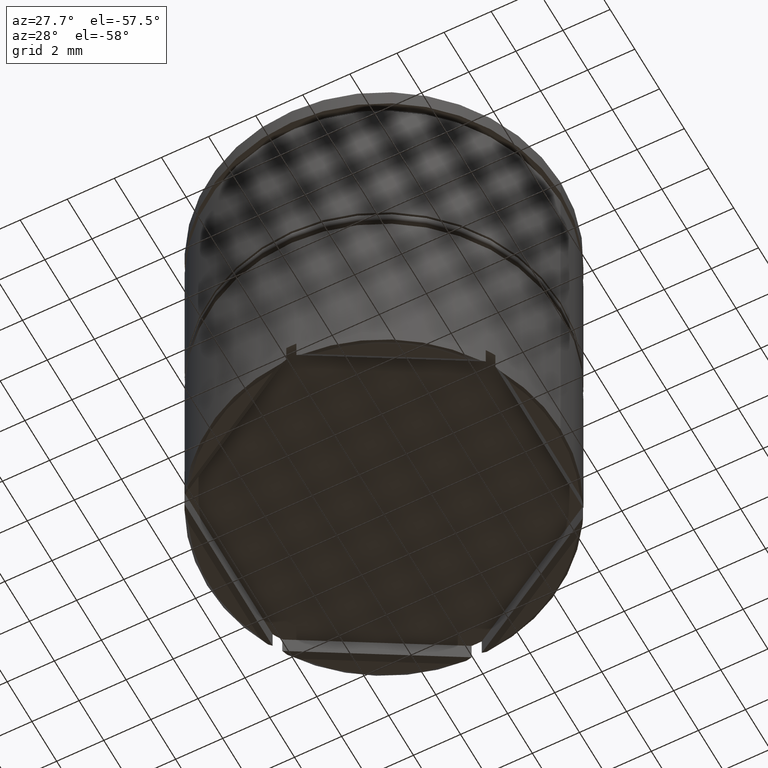
[diagram: clean part render]
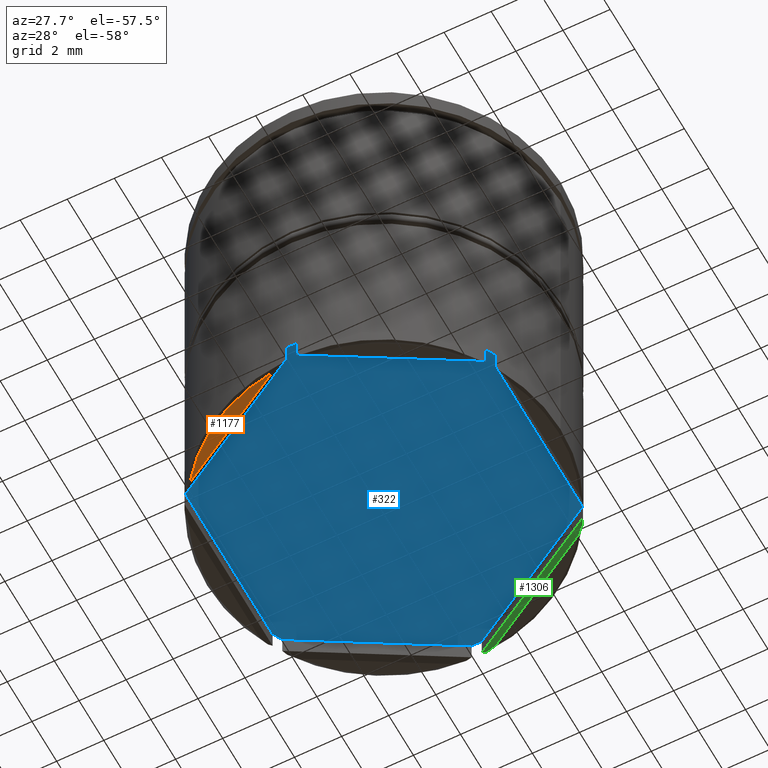
[diagram: same view with three faces highlighted in distinct colors, each labeled with its STEP entity id]
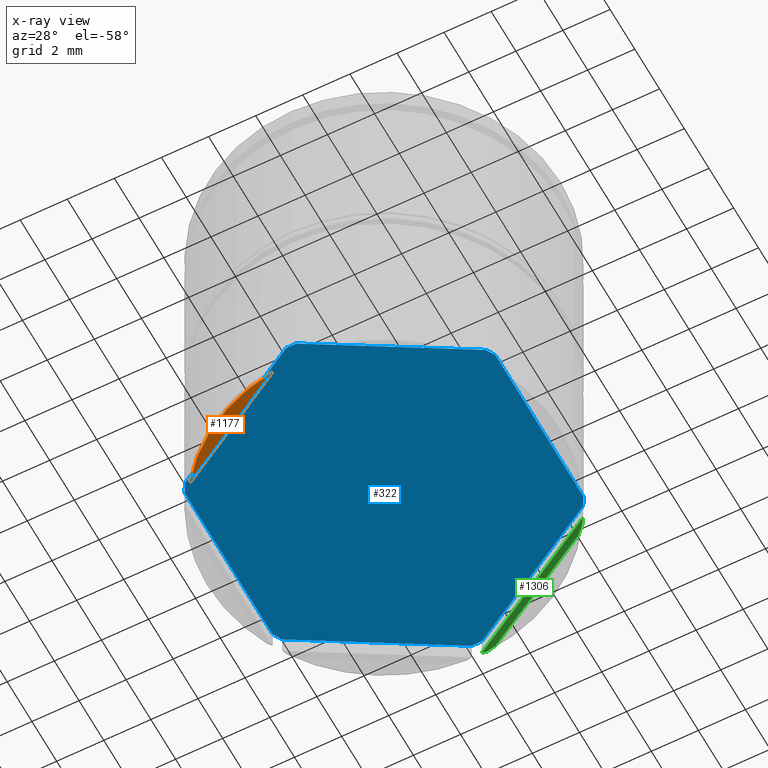
[diagram: x-ray of the same camera — body ghosted, the three highlighted faces saturated]
A machine part, auxiliary view with three faces highlighted in distinct colors.
The next image is the same camera in x-ray (body ghosted, the three faces saturated) — at least one of them is partly hidden behind the body in this view.
Their STEP definitions:

[orange] entity #1177 — the highlighted planar face has unit normal (0, 0, -1).
#65 = FACE_OUTER_BOUND ( 'NONE', #300, .T. ) ;
#84 = CARTESIAN_POINT ( 'NONE',  ( -0.8721550680471004124, -7.348424697666830596, -17.50000000000000000 ) ) ;
#123 = EDGE_CURVE ( 'NONE', #630, #1537, #536, .T. ) ;
#237 = AXIS2_PLACEMENT_3D ( 'NONE', #431, #1182, #418 ) ;
#300 = EDGE_LOOP ( 'NONE', ( #1471, #1034 ) ) ;
#340 = LINE ( 'NONE', #495, #1067 ) ;
#418 = DIRECTION ( 'NONE',  ( -1.000000000000000000, 0.000000000000000000, 0.000000000000000000 ) ) ;
#431 = CARTESIAN_POINT ( 'NONE',  ( 0.000000000000000000, 0.000000000000000000, -17.50000000000000000 ) ) ;
#495 = CARTESIAN_POINT ( 'NONE',  ( -0.5017246507621132556, -7.562292798802343619, -17.50000000000000000 ) ) ;
#536 = CIRCLE ( 'NONE', #237, 7.400000000000006573 ) ;
#630 = VERTEX_POINT ( 'NONE', #84 ) ;
#824 = PLANE ( 'NONE',  #953 ) ;
#853 = DIRECTION ( 'NONE',  ( 0.8660254037844385966, -0.5000000000000002220, 0.000000000000000000 ) ) ;
#953 = AXIS2_PLACEMENT_3D ( 'NONE', #1421, #1202, #1305 ) ;
#1034 = ORIENTED_EDGE ( 'NONE', *, *, #1328, .T. ) ;
#1067 = VECTOR ( 'NONE', #853, 999.9999999999998863 ) ;
#1118 = CARTESIAN_POINT ( 'NONE',  ( -5.927844931952908958, -4.429520793801551726, -17.50000000000000000 ) ) ;
#1177 = ADVANCED_FACE ( 'NONE', ( #65 ), #824, .T. ) ;
#1182 = DIRECTION ( 'NONE',  ( 0.000000000000000000, 0.000000000000000000, -1.000000000000000000 ) ) ;
#1202 = DIRECTION ( 'NONE',  ( 0.000000000000000000, 0.000000000000000000, -1.000000000000000000 ) ) ;
#1305 = DIRECTION ( 'NONE',  ( -1.000000000000000000, 0.000000000000000000, -0.000000000000000000 ) ) ;
#1328 = EDGE_CURVE ( 'NONE', #1537, #630, #340, .T. ) ;
#1421 = CARTESIAN_POINT ( 'NONE',  ( 0.000000000000000000, 7.500000000000000000, -17.50000000000000000 ) ) ;
#1471 = ORIENTED_EDGE ( 'NONE', *, *, #123, .T. ) ;
#1537 = VERTEX_POINT ( 'NONE', #1118 ) ;

[blue] entity #322 — the highlighted planar face has unit normal (0, 0, -1).
#5 = VECTOR ( 'NONE', #800, 1000.000000000000000 ) ;
#10 = VERTEX_POINT ( 'NONE', #894 ) ;
#29 = DIRECTION ( 'NONE',  ( -1.000000000000000000, 0.000000000000000000, 0.000000000000000000 ) ) ;
#50 = CIRCLE ( 'NONE', #979, 7.500000000000000000 ) ;
#62 = DIRECTION ( 'NONE',  ( 0.8660254037844387076, 0.4999999999999997780, 0.000000000000000000 ) ) ;
#75 = ORIENTED_EDGE ( 'NONE', *, *, #273, .F. ) ;
#86 = CARTESIAN_POINT ( 'NONE',  ( -0.2149554298195408275, 7.496918978032982572, -16.50000000000000000 ) ) ;
#100 = DIRECTION ( 'NONE',  ( 0.000000000000000000, 1.000000000000000000, 0.000000000000000000 ) ) ;
#103 = EDGE_CURVE ( 'NONE', #1447, #984, #1283, .T. ) ;
#114 = VERTEX_POINT ( 'NONE', #167 ) ;
#160 = CARTESIAN_POINT ( 'NONE',  ( 0.2149554298195403834, 7.496918978032981684, -16.50000000000000000 ) ) ;
#167 = CARTESIAN_POINT ( 'NONE',  ( -6.600000000000003197, -3.562302626111366610, -16.50000000000000000 ) ) ;
#170 = CARTESIAN_POINT ( 'NONE',  ( 0.000000000000000000, 0.000000000000000000, -16.50000000000000000 ) ) ;
#186 = LINE ( 'NONE', #542, #5 ) ;
#209 = CIRCLE ( 'NONE', #856, 7.500000000000000000 ) ;
#211 = AXIS2_PLACEMENT_3D ( 'NONE', #1380, #248, #29 ) ;
#231 = CARTESIAN_POINT ( 'NONE',  ( 0.2149554298195399393, -7.496918978032981684, -16.50000000000000000 ) ) ;
#236 = ORIENTED_EDGE ( 'NONE', *, *, #1288, .T. ) ;
#248 = DIRECTION ( 'NONE',  ( -0.000000000000000000, -0.000000000000000000, 1.000000000000000000 ) ) ;
#251 = DIRECTION ( 'NONE',  ( 0.000000000000000000, 0.000000000000000000, -1.000000000000000000 ) ) ;
#257 = CARTESIAN_POINT ( 'NONE',  ( 0.000000000000000000, 0.000000000000000000, -16.50000000000000000 ) ) ;
#265 = FACE_OUTER_BOUND ( 'NONE', #1130, .T. ) ;
#270 = VECTOR ( 'NONE', #1358, 1000.000000000000000 ) ;
#273 = EDGE_CURVE ( 'NONE', #859, #984, #1533, .T. ) ;
#282 = EDGE_CURVE ( 'NONE', #1198, #1158, #1585, .T. ) ;
#287 = VECTOR ( 'NONE', #1524, 1000.000000000000000 ) ;
#320 = CARTESIAN_POINT ( 'NONE',  ( 6.600000000000003197, 3.562302626111367498, -16.50000000000000000 ) ) ;
#321 = DIRECTION ( 'NONE',  ( -1.000000000000000000, 0.000000000000000000, 0.000000000000000000 ) ) ;
#322 = ADVANCED_FACE ( 'NONE', ( #265 ), #1517, .T. ) ;
#378 = CARTESIAN_POINT ( 'NONE',  ( -6.600000000000003197, 3.562302626111366610, -16.50000000000000000 ) ) ;
#401 = DIRECTION ( 'NONE',  ( -1.000000000000000000, 0.000000000000000000, -0.000000000000000000 ) ) ;
#428 = ORIENTED_EDGE ( 'NONE', *, *, #562, .F. ) ;
#450 = VERTEX_POINT ( 'NONE', #378 ) ;
#464 = VERTEX_POINT ( 'NONE', #816 ) ;
#479 = EDGE_CURVE ( 'NONE', #114, #1158, #209, .T. ) ;
#503 = DIRECTION ( 'NONE',  ( -0.000000000000000000, -0.000000000000000000, 1.000000000000000000 ) ) ;
#542 = CARTESIAN_POINT ( 'NONE',  ( 6.600000000000004974, 3.810511776651531957, -16.50000000000000000 ) ) ;
#544 = ORIENTED_EDGE ( 'NONE', *, *, #838, .T. ) ;
#558 = DIRECTION ( 'NONE',  ( -1.000000000000000000, -5.595524044110788964E-14, 0.000000000000000000 ) ) ;
#562 = EDGE_CURVE ( 'NONE', #1447, #450, #50, .T. ) ;
#581 = DIRECTION ( 'NONE',  ( -0.000000000000000000, -0.000000000000000000, 1.000000000000000000 ) ) ;
#657 = CARTESIAN_POINT ( 'NONE',  ( 0.000000000000000000, 0.000000000000000000, -16.50000000000000000 ) ) ;
#661 = ORIENTED_EDGE ( 'NONE', *, *, #103, .T. ) ;
#670 = VERTEX_POINT ( 'NONE', #320 ) ;
#673 = CARTESIAN_POINT ( 'NONE',  ( 0.000000000000000000, 0.000000000000000000, -16.50000000000000000 ) ) ;
#675 = ORIENTED_EDGE ( 'NONE', *, *, #714, .T. ) ;
#714 = EDGE_CURVE ( 'NONE', #859, #464, #1627, .T. ) ;
#722 = CIRCLE ( 'NONE', #211, 7.500000000000000000 ) ;
#735 = LINE ( 'NONE', #1238, #1511 ) ;
#741 = ORIENTED_EDGE ( 'NONE', *, *, #826, .F. ) ;
#747 = EDGE_CURVE ( 'NONE', #114, #450, #735, .T. ) ;
#766 = ORIENTED_EDGE ( 'NONE', *, *, #1141, .F. ) ;
#800 = DIRECTION ( 'NONE',  ( 1.138117120255423023E-16, -1.000000000000000000, 0.000000000000000000 ) ) ;
#802 = AXIS2_PLACEMENT_3D ( 'NONE', #1324, #581, #1087 ) ;
#816 = CARTESIAN_POINT ( 'NONE',  ( 6.385044570180465229, 3.934616351921614186, -16.50000000000000000 ) ) ;
#826 = EDGE_CURVE ( 'NONE', #10, #1074, #722, .T. ) ;
#838 = EDGE_CURVE ( 'NONE', #670, #1074, #186, .T. ) ;
#851 = CARTESIAN_POINT ( 'NONE',  ( -6.385044570180463452, 3.934616351921620403, -16.50000000000000000 ) ) ;
#856 = AXIS2_PLACEMENT_3D ( 'NONE', #1569, #1193, #936 ) ;
#859 = VERTEX_POINT ( 'NONE', #160 ) ;
#861 = ORIENTED_EDGE ( 'NONE', *, *, #747, .T. ) ;
#893 = DIRECTION ( 'NONE',  ( 0.8660254037844385966, -0.5000000000000001110, 0.000000000000000000 ) ) ;
#894 = CARTESIAN_POINT ( 'NONE',  ( 6.385044570180463452, -3.934616351921617738, -16.50000000000000000 ) ) ;
#916 = CARTESIAN_POINT ( 'NONE',  ( 6.600000000000003197, -3.562302626111365722, -16.50000000000000000 ) ) ;
#931 = CIRCLE ( 'NONE', #983, 7.500000000000000000 ) ;
#936 = DIRECTION ( 'NONE',  ( -1.000000000000000000, 0.000000000000000000, 0.000000000000000000 ) ) ;
#978 = VECTOR ( 'NONE', #62, 1000.000000000000114 ) ;
#979 = AXIS2_PLACEMENT_3D ( 'NONE', #673, #1172, #558 ) ;
#983 = AXIS2_PLACEMENT_3D ( 'NONE', #170, #1186, #321 ) ;
#984 = VERTEX_POINT ( 'NONE', #86 ) ;
#1014 = CARTESIAN_POINT ( 'NONE',  ( 0.000000000000000000, 7.621023553303065690, -16.50000000000000000 ) ) ;
#1018 = EDGE_CURVE ( 'NONE', #1198, #1263, #1614, .T. ) ;
#1074 = VERTEX_POINT ( 'NONE', #916 ) ;
#1077 = ORIENTED_EDGE ( 'NONE', *, *, #282, .T. ) ;
#1087 = DIRECTION ( 'NONE',  ( -1.000000000000000000, 7.283063041541026905E-14, 0.000000000000000000 ) ) ;
#1102 = CARTESIAN_POINT ( 'NONE',  ( 6.600000000000005862, -3.810511776651533733, -16.50000000000000000 ) ) ;
#1130 = EDGE_LOOP ( 'NONE', ( #861, #428, #661, #75, #675, #766, #544, #741, #236, #1154, #1077, #1607 ) ) ;
#1141 = EDGE_CURVE ( 'NONE', #670, #464, #931, .T. ) ;
#1154 = ORIENTED_EDGE ( 'NONE', *, *, #1018, .F. ) ;
#1158 = VERTEX_POINT ( 'NONE', #1439 ) ;
#1165 = DIRECTION ( 'NONE',  ( -1.000000000000000000, 0.000000000000000000, 0.000000000000000000 ) ) ;
#1172 = DIRECTION ( 'NONE',  ( -0.000000000000000000, -0.000000000000000000, 1.000000000000000000 ) ) ;
#1186 = DIRECTION ( 'NONE',  ( -0.000000000000000000, -0.000000000000000000, 1.000000000000000000 ) ) ;
#1193 = DIRECTION ( 'NONE',  ( -0.000000000000000000, -0.000000000000000000, 1.000000000000000000 ) ) ;
#1198 = VERTEX_POINT ( 'NONE', #1553 ) ;
#1238 = CARTESIAN_POINT ( 'NONE',  ( -6.600000000000004974, -3.810511776651531513, -16.50000000000000000 ) ) ;
#1261 = CARTESIAN_POINT ( 'NONE',  ( -4.310144132208485433E-16, -7.621023553303065690, -16.50000000000000000 ) ) ;
#1263 = VERTEX_POINT ( 'NONE', #231 ) ;
#1283 = LINE ( 'NONE', #1575, #978 ) ;
#1288 = EDGE_CURVE ( 'NONE', #10, #1263, #1485, .T. ) ;
#1289 = VECTOR ( 'NONE', #893, 1000.000000000000000 ) ;
#1324 = CARTESIAN_POINT ( 'NONE',  ( 0.000000000000000000, 0.000000000000000000, -16.50000000000000000 ) ) ;
#1358 = DIRECTION ( 'NONE',  ( -0.8660254037844387076, -0.4999999999999998335, 0.000000000000000000 ) ) ;
#1377 = AXIS2_PLACEMENT_3D ( 'NONE', #657, #503, #1165 ) ;
#1380 = CARTESIAN_POINT ( 'NONE',  ( 0.000000000000000000, 0.000000000000000000, -16.50000000000000000 ) ) ;
#1439 = CARTESIAN_POINT ( 'NONE',  ( -6.385044570180465229, -3.934616351921614186, -16.50000000000000000 ) ) ;
#1447 = VERTEX_POINT ( 'NONE', #851 ) ;
#1483 = AXIS2_PLACEMENT_3D ( 'NONE', #257, #251, #401 ) ;
#1485 = LINE ( 'NONE', #1102, #270 ) ;
#1511 = VECTOR ( 'NONE', #100, 1000.000000000000000 ) ;
#1517 = PLANE ( 'NONE',  #1483 ) ;
#1524 = DIRECTION ( 'NONE',  ( -0.8660254037844385966, 0.5000000000000001110, 0.000000000000000000 ) ) ;
#1533 = CIRCLE ( 'NONE', #802, 7.500000000000000000 ) ;
#1553 = CARTESIAN_POINT ( 'NONE',  ( -0.2149554298195403834, -7.496918978032981684, -16.50000000000000000 ) ) ;
#1569 = CARTESIAN_POINT ( 'NONE',  ( 0.000000000000000000, 0.000000000000000000, -16.50000000000000000 ) ) ;
#1575 = CARTESIAN_POINT ( 'NONE',  ( -6.600000000000004974, 3.810511776651534621, -16.50000000000000000 ) ) ;
#1585 = LINE ( 'NONE', #1261, #287 ) ;
#1607 = ORIENTED_EDGE ( 'NONE', *, *, #479, .F. ) ;
#1614 = CIRCLE ( 'NONE', #1377, 7.500000000000000000 ) ;
#1627 = LINE ( 'NONE', #1014, #1289 ) ;

[green] entity #1306 — the highlighted planar face has unit normal (-0.3536, -0.6124, -0.7071).
#3 = EDGE_CURVE ( 'NONE', #601, #527, #17, .T. ) ;
#13 = CARTESIAN_POINT ( 'NONE',  ( 6.157154144826802344, 4.222641117626285912, -17.43549155134247286 ) ) ;
#15 = ORIENTED_EDGE ( 'NONE', *, *, #815, .F. ) ;
#17 = LINE ( 'NONE', #1260, #775 ) ;
#72 = CARTESIAN_POINT ( 'NONE',  ( 6.268903903865270522, 4.117140250720489725, -17.40000000000000568 ) ) ;
#76 = ORIENTED_EDGE ( 'NONE', *, *, #1048, .F. ) ;
#94 = PLANE ( 'NONE',  #786 ) ;
#98 = VERTEX_POINT ( 'NONE', #1069 ) ;
#134 =( BOUNDED_CURVE ( )  B_SPLINE_CURVE ( 3, ( #172, #1341, #1581, #207 ),
 .UNSPECIFIED., .F., .T. ) 
 B_SPLINE_CURVE_WITH_KNOTS ( ( 4, 4 ),
 ( 3.607680251568620822, 3.636526779930687070 ),
 .UNSPECIFIED. ) 
 CURVE ( )  GEOMETRIC_REPRESENTATION_ITEM ( )  RATIONAL_B_SPLINE_CURVE ( ( 1.000000000000000000, 0.9999306576855770956, 0.9999306576855770956, 1.000000000000000000 ) ) 
 REPRESENTATION_ITEM ( '' )  );
#141 = CARTESIAN_POINT ( 'NONE',  ( 6.043444844604824340, 4.326829627329010997, -17.46886679741648507 ) ) ;
#172 = CARTESIAN_POINT ( 'NONE',  ( 0.4310960961347474196, 7.487600159991008475, -17.40000000000000568 ) ) ;
#204 = CARTESIAN_POINT ( 'NONE',  ( 0.5783374065156791088, 7.443572463249803484, -17.43549155134247286 ) ) ;
#207 = CARTESIAN_POINT ( 'NONE',  ( 0.2149554298195403834, 7.496918978032981684, -17.29999999999999716 ) ) ;
#229 = CARTESIAN_POINT ( 'NONE',  ( 0.5017246507621122564, 7.562292798802341842, -17.50000000000000000 ) ) ;
#241 = DIRECTION ( 'NONE',  ( 0.8660254037844385966, -0.5000000000000001110, 0.000000000000000000 ) ) ;
#250 = ORIENTED_EDGE ( 'NONE', *, *, #3, .F. ) ;
#313 = B_SPLINE_CURVE_WITH_KNOTS ( 'NONE', 3,
 ( #330, #846, #204, #585 ),
 .UNSPECIFIED., .F., .F.,
 ( 4, 4 ),
 ( 0.000000000000000000, 0.0004731837127559710104 ),
 .UNSPECIFIED. ) ;
#330 = CARTESIAN_POINT ( 'NONE',  ( 0.8721550680470955275, 7.348424697666831484, -17.50000000000000000 ) ) ;
#468 = DIRECTION ( 'NONE',  ( -0.8660254037844385966, 0.5000000000000001110, 0.000000000000000000 ) ) ;
#527 = VERTEX_POINT ( 'NONE', #547 ) ;
#547 = CARTESIAN_POINT ( 'NONE',  ( 6.385044570180465229, 3.934616351921614186, -17.29999999999999716 ) ) ;
#585 = CARTESIAN_POINT ( 'NONE',  ( 0.4310960961347474196, 7.487600159991008475, -17.40000000000000568 ) ) ;
#601 = VERTEX_POINT ( 'NONE', #1357 ) ;
#695 =( BOUNDED_CURVE ( )  B_SPLINE_CURVE ( 3, ( #745, #706, #1212, #1232 ),
 .UNSPECIFIED., .F., .T. ) 
 B_SPLINE_CURVE_WITH_KNOTS ( ( 4, 4 ),
 ( 2.646658527248899162, 2.675505055610964966 ),
 .UNSPECIFIED. ) 
 CURVE ( )  GEOMETRIC_REPRESENTATION_ITEM ( )  RATIONAL_B_SPLINE_CURVE ( ( 1.000000000000000000, 0.9999306576855770956, 0.9999306576855770956, 1.000000000000000000 ) ) 
 REPRESENTATION_ITEM ( '' )  );
#706 = CARTESIAN_POINT ( 'NONE',  ( 6.347209917643041877, 3.996013937134915484, -17.33425454225702111 ) ) ;
#742 = DIRECTION ( 'NONE',  ( -0.8660254037844385966, 0.5000000000000002220, 0.000000000000000000 ) ) ;
#745 = CARTESIAN_POINT ( 'NONE',  ( 6.385044570180465229, 3.934616351921614186, -17.29999999999999716 ) ) ;
#775 = VECTOR ( 'NONE', #241, 1000.000000000000000 ) ;
#785 = CARTESIAN_POINT ( 'NONE',  ( 0.4310960961347474196, 7.487600159991008475, -17.40000000000000568 ) ) ;
#786 = AXIS2_PLACEMENT_3D ( 'NONE', #1120, #1596, #468 ) ;
#815 = EDGE_CURVE ( 'NONE', #98, #910, #1364, .T. ) ;
#837 = B_SPLINE_CURVE_WITH_KNOTS ( 'NONE', 3,
 ( #1151, #13, #141, #1397 ),
 .UNSPECIFIED., .F., .F.,
 ( 4, 4 ),
 ( 0.000000000000000000, 0.0004731837127559763230 ),
 .UNSPECIFIED. ) ;
#846 = CARTESIAN_POINT ( 'NONE',  ( 0.7254219528116691018, 7.397191575462382929, -17.46886679741648507 ) ) ;
#910 = VERTEX_POINT ( 'NONE', #1598 ) ;
#1048 = EDGE_CURVE ( 'NONE', #1459, #98, #837, .T. ) ;
#1069 = CARTESIAN_POINT ( 'NONE',  ( 5.927844931952911622, 4.429520793801547285, -17.50000000000000000 ) ) ;
#1105 = ORIENTED_EDGE ( 'NONE', *, *, #1344, .F. ) ;
#1116 = VERTEX_POINT ( 'NONE', #785 ) ;
#1117 = ORIENTED_EDGE ( 'NONE', *, *, #1280, .F. ) ;
#1120 = CARTESIAN_POINT ( 'NONE',  ( 0.000000000000000000, 7.621023553303065690, -17.29999999999999716 ) ) ;
#1151 = CARTESIAN_POINT ( 'NONE',  ( 6.268903903865270522, 4.117140250720489725, -17.40000000000000568 ) ) ;
#1212 = CARTESIAN_POINT ( 'NONE',  ( 6.308493677530949029, 4.056859455903633283, -17.36759018716113090 ) ) ;
#1232 = CARTESIAN_POINT ( 'NONE',  ( 6.268903903865270522, 4.117140250720489725, -17.40000000000000568 ) ) ;
#1260 = CARTESIAN_POINT ( 'NONE',  ( 6.198275349237895249, 4.042447611909143923, -17.29999999999999716 ) ) ;
#1280 = EDGE_CURVE ( 'NONE', #910, #1116, #313, .T. ) ;
#1306 = ADVANCED_FACE ( 'NONE', ( #1366 ), #94, .T. ) ;
#1333 = EDGE_LOOP ( 'NONE', ( #1117, #15, #76, #1105, #250, #1605 ) ) ;
#1341 = CARTESIAN_POINT ( 'NONE',  ( 0.3590965096301930726, 7.491745512307133481, -17.36759018716113090 ) ) ;
#1344 = EDGE_CURVE ( 'NONE', #527, #1459, #695, .T. ) ;
#1357 = CARTESIAN_POINT ( 'NONE',  ( 0.2149554298195403834, 7.496918978032981684, -17.29999999999999716 ) ) ;
#1364 = LINE ( 'NONE', #229, #1428 ) ;
#1366 = FACE_OUTER_BOUND ( 'NONE', #1333, .T. ) ;
#1397 = CARTESIAN_POINT ( 'NONE',  ( 5.927844931952911622, 4.429520793801547285, -17.50000000000000000 ) ) ;
#1428 = VECTOR ( 'NONE', #742, 999.9999999999998863 ) ;
#1459 = VERTEX_POINT ( 'NONE', #72 ) ;
#1581 = CARTESIAN_POINT ( 'NONE',  ( 0.2870446246139922164, 7.494852000398866565, -17.33425454225702111 ) ) ;
#1596 = DIRECTION ( 'NONE',  ( -0.3535533905932769505, -0.6123724356957999104, -0.7071067811865413555 ) ) ;
#1598 = CARTESIAN_POINT ( 'NONE',  ( 0.8721550680470955275, 7.348424697666831484, -17.50000000000000000 ) ) ;
#1605 = ORIENTED_EDGE ( 'NONE', *, *, #1606, .F. ) ;
#1606 = EDGE_CURVE ( 'NONE', #1116, #601, #134, .T. ) ;